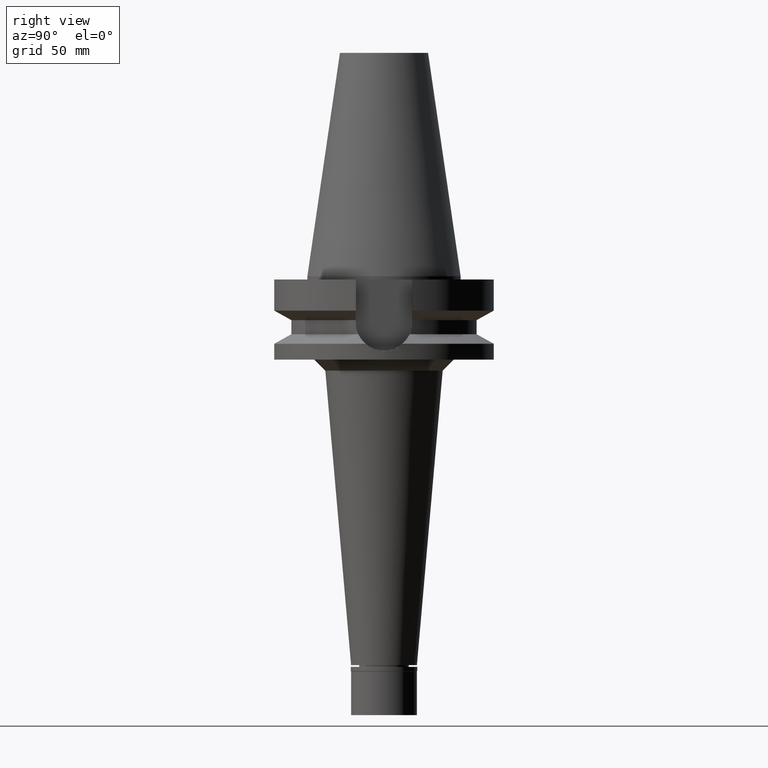
[diagram: clean part render]
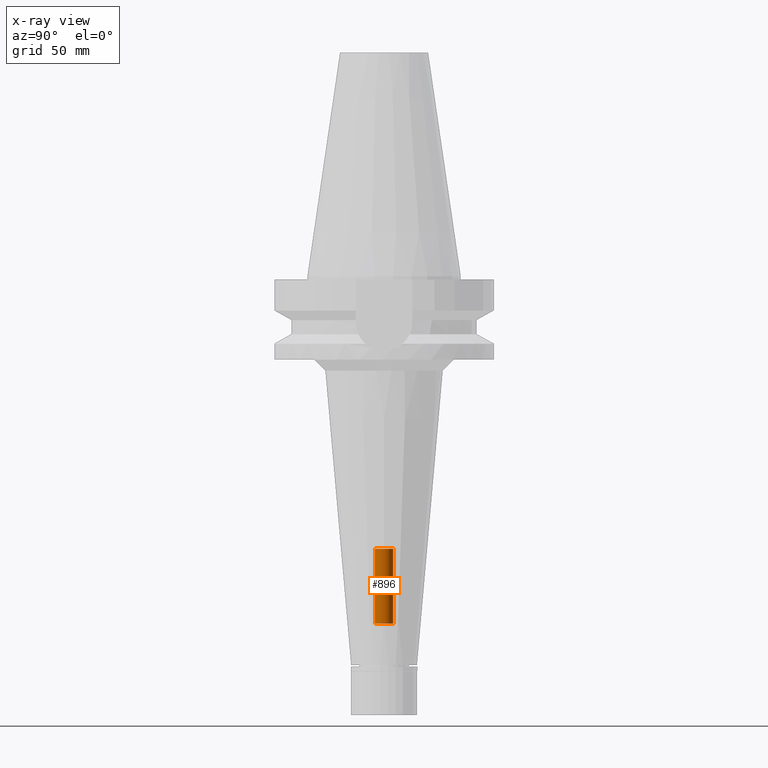
[diagram: x-ray — body ghosted, one internal face saturated and labeled with its STEP entity id]
A machine part, right view, then the same camera in x-ray: the body is ghosted and one INTERNAL B-rep face — a face not visible from any outside direction — is saturated and labeled: STEP entity #896.
In plain terms, the highlighted cylindrical surface (edge-blend (fillet) strip) has radius 4.2 mm, axis along (0, 0, -1).
Its self-contained STEP definition (entity closure, byte-faithful):
#54 = DIRECTION ( 'NONE',  ( 0.0000000000000000000, 0.0000000000000000000, -1.000000000000000000 ) ) ;
#183 = CARTESIAN_POINT ( 'NONE',  ( 0.0000000000000000000, 4.200000000000000178, -124.2000000000000028 ) ) ;
#252 = VERTEX_POINT ( 'NONE', #3070 ) ;
#462 = CARTESIAN_POINT ( 'NONE',  ( 0.0000000000000000000, -4.200000000000000178, -124.2000000000000028 ) ) ;
#508 = CARTESIAN_POINT ( 'NONE',  ( 0.0000000000000000000, 2.652033875893999731E-14, -124.2000000000000028 ) ) ;
#552 = CIRCLE ( 'NONE', #2702, 4.200000000000000178 ) ;
#672 = VERTEX_POINT ( 'NONE', #183 ) ;
#706 = EDGE_LOOP ( 'NONE', ( #987, #2518, #2063, #3046 ) ) ;
#725 = EDGE_CURVE ( 'NONE', #3076, #252, #1234, .T. ) ;
#896 = ADVANCED_FACE ( 'NONE', ( #1004 ), #2286, .F. ) ;
#987 = ORIENTED_EDGE ( 'NONE', *, *, #725, .T. ) ;
#1004 = FACE_OUTER_BOUND ( 'NONE', #706, .T. ) ;
#1015 = VERTEX_POINT ( 'NONE', #462 ) ;
#1152 = CARTESIAN_POINT ( 'NONE',  ( 0.0000000000000000000, -4.200000000000000178, -158.2999999999999829 ) ) ;
#1180 = AXIS2_PLACEMENT_3D ( 'NONE', #2944, #54, #2755 ) ;
#1234 = CIRCLE ( 'NONE', #1340, 4.200000000000000178 ) ;
#1340 = AXIS2_PLACEMENT_3D ( 'NONE', #3106, #1921, #2440 ) ;
#1414 = DIRECTION ( 'NONE',  ( 0.0000000000000000000, 0.0000000000000000000, 1.000000000000000000 ) ) ;
#1510 = DIRECTION ( 'NONE',  ( 0.0000000000000000000, -1.000000000000000000, 0.0000000000000000000 ) ) ;
#1676 = LINE ( 'NONE', #1152, #2150 ) ;
#1786 = EDGE_CURVE ( 'NONE', #3076, #672, #1871, .T. ) ;
#1871 = LINE ( 'NONE', #2401, #2462 ) ;
#1921 = DIRECTION ( 'NONE',  ( 0.0000000000000000000, 0.0000000000000000000, -1.000000000000000000 ) ) ;
#2063 = ORIENTED_EDGE ( 'NONE', *, *, #2740, .T. ) ;
#2150 = VECTOR ( 'NONE', #2218, 1000.000000000000000 ) ;
#2218 = DIRECTION ( 'NONE',  ( 0.0000000000000000000, 0.0000000000000000000, 1.000000000000000000 ) ) ;
#2286 = CYLINDRICAL_SURFACE ( 'NONE', #1180, 4.200000000000000178 ) ;
#2401 = CARTESIAN_POINT ( 'NONE',  ( 0.0000000000000000000, 4.200000000000000178, -158.2999999999999829 ) ) ;
#2440 = DIRECTION ( 'NONE',  ( 0.0000000000000000000, 1.000000000000000000, 0.0000000000000000000 ) ) ;
#2462 = VECTOR ( 'NONE', #1414, 1000.000000000000000 ) ;
#2518 = ORIENTED_EDGE ( 'NONE', *, *, #3162, .T. ) ;
#2702 = AXIS2_PLACEMENT_3D ( 'NONE', #508, #2981, #1510 ) ;
#2740 = EDGE_CURVE ( 'NONE', #1015, #672, #552, .T. ) ;
#2755 = DIRECTION ( 'NONE',  ( 0.0000000000000000000, -1.000000000000000000, 0.0000000000000000000 ) ) ;
#2795 = CARTESIAN_POINT ( 'NONE',  ( 0.0000000000000000000, 4.200000000000000178, -158.2999999999999829 ) ) ;
#2944 = CARTESIAN_POINT ( 'NONE',  ( 0.0000000000000000000, 2.652033875893999731E-14, 116.5550000000000068 ) ) ;
#2981 = DIRECTION ( 'NONE',  ( 0.0000000000000000000, 0.0000000000000000000, 1.000000000000000000 ) ) ;
#3046 = ORIENTED_EDGE ( 'NONE', *, *, #1786, .F. ) ;
#3070 = CARTESIAN_POINT ( 'NONE',  ( 0.0000000000000000000, -4.200000000000000178, -158.2999999999999829 ) ) ;
#3076 = VERTEX_POINT ( 'NONE', #2795 ) ;
#3106 = CARTESIAN_POINT ( 'NONE',  ( 0.0000000000000000000, 2.652033875893999731E-14, -158.2999999999999829 ) ) ;
#3162 = EDGE_CURVE ( 'NONE', #252, #1015, #1676, .T. ) ;